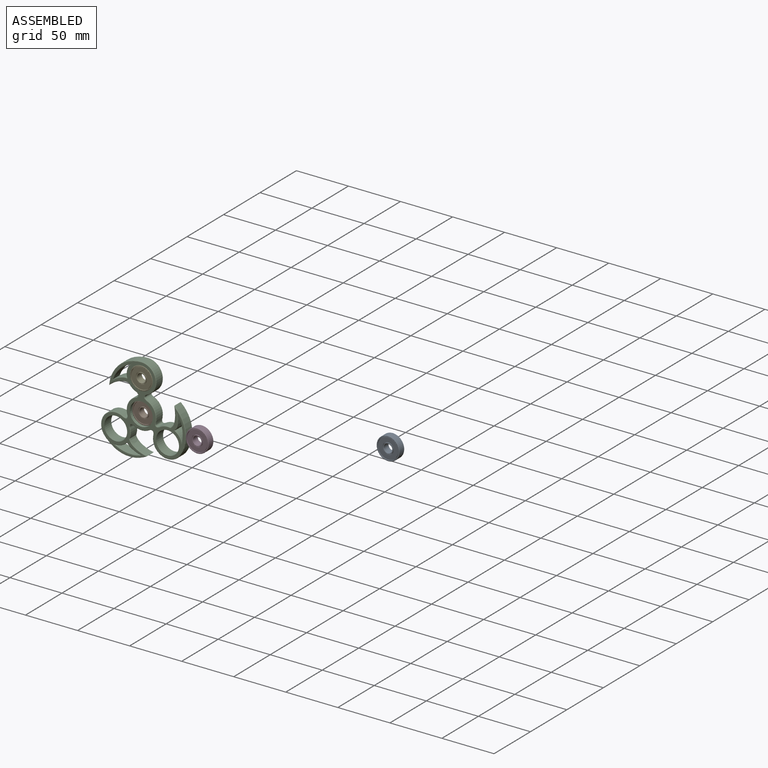
[diagram: assembled view]
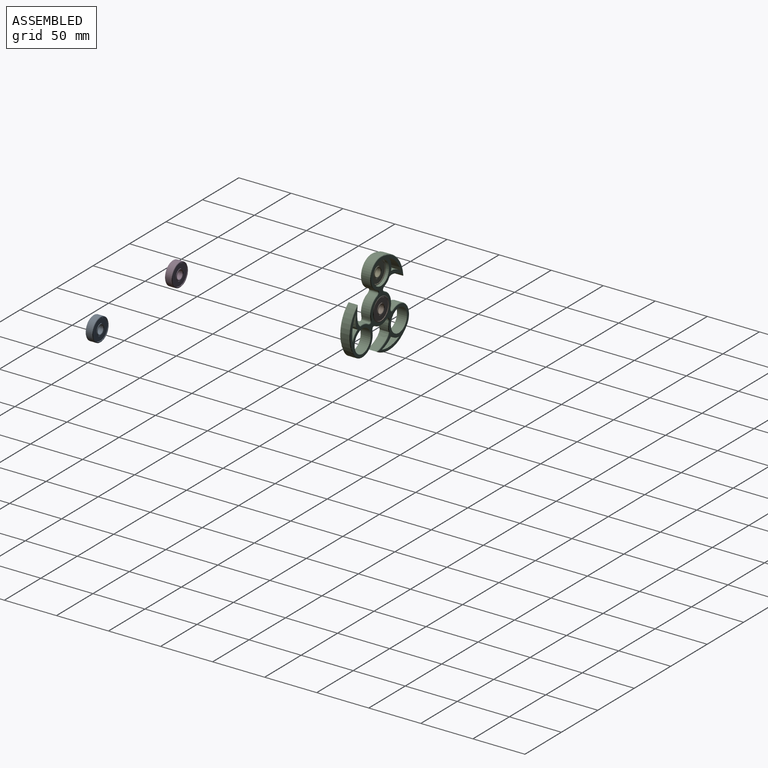
[diagram: assembled view, second angle]
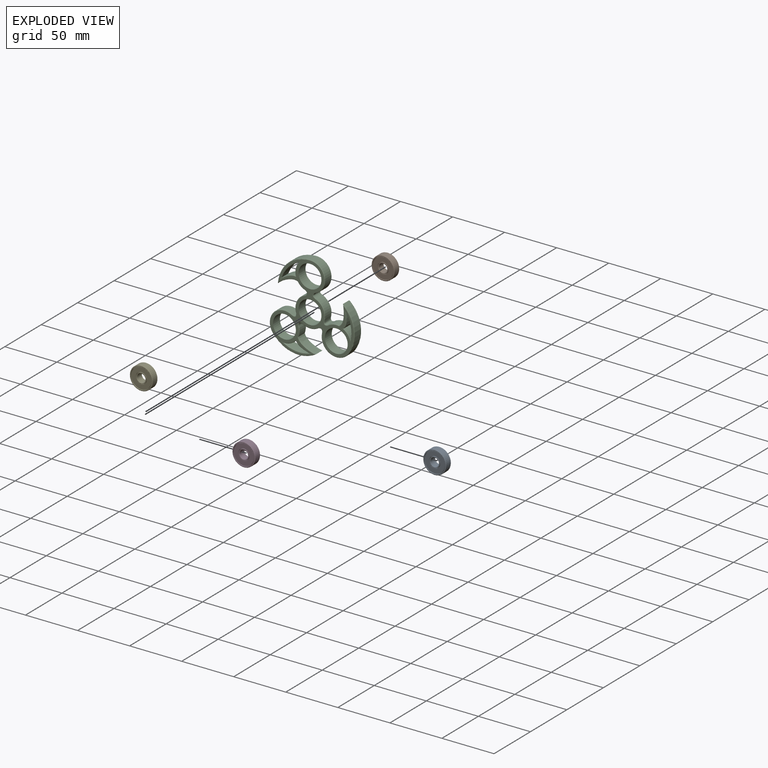
[diagram: exploded view]
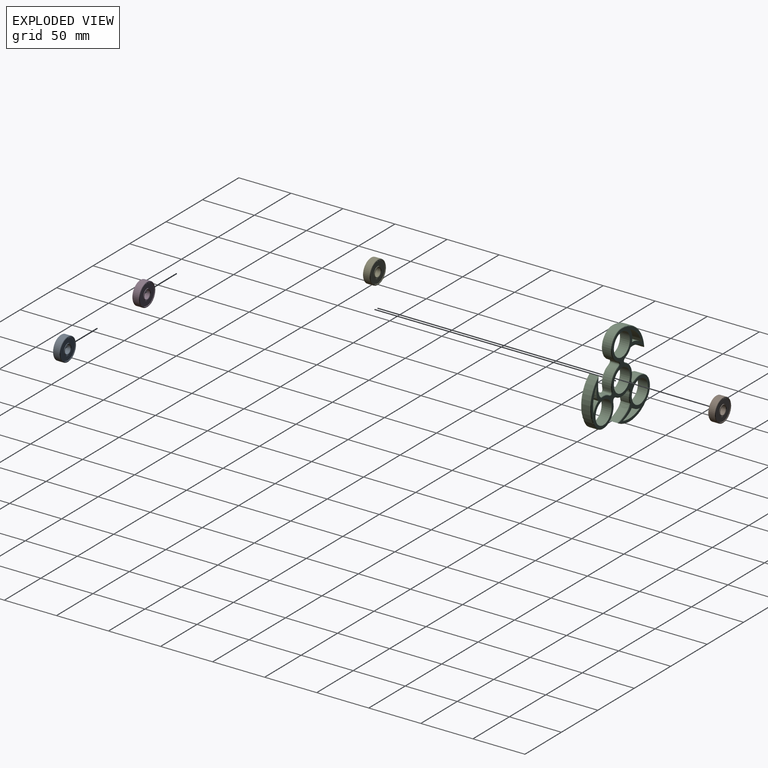
[diagram: exploded view, second angle]
ASSEMBLY  parts=5 mates=2
PART A: 32 faces, bbox 22x7x22 mm
  f0: cylinder r=10mm len=20mm, axis (0,1,0), area 62.8mm2, adj f1,f19
  f1: plane 21.34x21.34mm, normal (0,1,0), area 43.5mm2, adj f0,f21
  f2: cylinder r=11mm len=22mm, axis (0,1,0), area 438.2mm2, adj f20,f21
  f3: plane 21.34x21.34mm, normal (0,-1,0), area 43.5mm2, adj f4,f20
  f4: cylinder r=10mm len=20mm, axis (0,1,0), area 62.8mm2, adj f3,f5
  f5: plane 20x20mm, normal (0,-1,0), area 18.1mm2, adj f4,f6
  f6: cylinder r=9.71mm len=19.42mm, axis (0,1,0), area 44.7mm2, adj f5,f7
  f7: plane 19.42x19.42mm, normal (0,-1,0), area 208.1mm2, adj f6,f8
  f8: cylinder r=5.29mm len=10.58mm, axis (0,1,0), area 24.4mm2, adj f7,f9
  f9: plane 10.58x10.58mm, normal (0,-1,0), area 9.4mm2, adj f8,f10
  f10: cylinder r=5mm len=10mm, axis (0,1,0), area 31.4mm2, adj f9,f11
  f11: plane 10x10mm, normal (0,-1,0), area 19.6mm2, adj f10,f22
  f12: cylinder r=4mm len=8mm, axis (0,1,0), area 159.3mm2, adj f22,f23
  f13: plane 10x10mm, normal (0,1,0), area 19.6mm2, adj f14,f23
  f14: cylinder r=5mm len=10mm, axis (0,1,0), area 31.4mm2, adj f13,f15
  f15: plane 10.58x10.58mm, normal (0,1,0), area 9.4mm2, adj f14,f16
  f16: cylinder r=5.29mm len=10.58mm, axis (0,1,0), area 24.4mm2, adj f15,f17
  f17: plane 19.42x19.42mm, normal (0,1,0), area 208.1mm2, adj f16,f18
  f18: cylinder r=9.71mm len=19.42mm, axis (0,1,0), area 44.7mm2, adj f17,f19
  f19: plane 20x20mm, normal (0,1,0), area 18.1mm2, adj f0,f18
  f20: cone r=11mm half-angle=45deg, axis (0,1,0), area 31.8mm2, adj f2,f3
  f21: cone r=10.67mm half-angle=45deg, axis (0,-1,0), area 31.8mm2, adj f1,f2
  f22: cone r=4.33mm half-angle=45deg, axis (0,-1,0), area 12.2mm2, adj f11,f12
  f23: cone r=4mm half-angle=45deg, axis (0,1,0), area 12.2mm2, adj f12,f13
  f24: cylinder r=8.16mm len=16.32mm, axis (0,1,0), area 48.4mm2, adj f25,f31
  f25: torus R=7.5mm, axis (0,1,0), area 219.3mm2, adj f24,f26
  f26: cylinder r=8.16mm len=16.32mm, axis (0,1,0), area 48.4mm2, adj f25,f27
  f27: plane 16.32x16.32mm, normal (0,-1,0), area 62.1mm2, adj f26,f28
  f28: cylinder r=6.84mm len=13.68mm, axis (0,1,0), area 40.6mm2, adj f27,f29
  f29: torus R=7.5mm, axis (0,1,0), area 153.3mm2, adj f28,f30
  f30: cylinder r=6.84mm len=13.68mm, axis (0,1,0), area 40.6mm2, adj f29,f31
  f31: plane 16.32x16.32mm, normal (0,1,0), area 62.1mm2, adj f24,f30
PART B: same geometry as A
PART C: 87 faces, bbox 85.3x9.5x90.6 mm
  f0: cylinder r=30.84mm len=23.63mm, axis (0,1,0), area 216.9mm2, adj f1,f29,f31,f77
  f1: cylinder r=14.29mm len=11.04mm, axis (0,1,0), area 110.8mm2, adj f0,f29,f31,f79
  f2: cylinder r=30.84mm len=23.07mm, axis (0,1,0), area 214.3mm2, adj f3,f26,f31,f74
  f3: cylinder r=14.29mm len=8.89mm, axis (0,1,0), area 99.4mm2, adj f2,f26,f31,f76
  f4: cylinder r=14.29mm len=27.66mm, axis (0,1,0), area 328.1mm2, adj f5,f27,f39,f60
  f5: cylinder r=30.84mm len=31.09mm, axis (0,1,0), area 384mm2, adj f4,f6,f37,f58
  f6: extruded ~19.01x8.26mm, area 172.9mm2, adj f5,f7,f35,f56
  f7: cylinder r=14.29mm len=8.26mm, axis (0,1,0), area 76.4mm2, adj f6,f8,f33,f54
  f8: extruded ~8.26x4.37mm, area 49.4mm2, adj f7,f9,f32,f53
  f9: cylinder r=14.29mm len=17.94mm, axis (0,1,0), area 181.2mm2, adj f8,f10,f34,f55
  f10: extruded ~8.26x3.92mm, area 50.1mm2, adj f9,f11,f36,f57
  f11: cylinder r=14.29mm len=22.99mm, axis (0,1,0), area 324.4mm2, adj f10,f12,f38,f59
  f12: cylinder r=30.84mm len=41.6mm, axis (0,1,0), area 384mm2, adj f11,f13,f40,f61
  f13: extruded ~17.08x10.46mm, area 172.8mm2, adj f12,f14,f42,f63
  f14: cylinder r=14.29mm len=10.04mm, axis (0,1,0), area 84.7mm2, adj f13,f15,f44,f65
  f15: extruded ~8.26x3.57mm, area 46.5mm2, adj f14,f16,f46,f67
  f16: cylinder r=14.29mm len=15.17mm, axis (0,1,0), area 132mm2, adj f15,f17,f48,f69
  f17: extruded ~8.26x3.72mm, area 50.2mm2, adj f16,f18,f50,f71
  f18: cylinder r=14.29mm len=25.99mm, axis (0,1,0), area 328.1mm2, adj f17,f19,f52,f73
  f19: cylinder r=30.84mm len=41.86mm, axis (0,1,0), area 384mm2, adj f18,f20,f51,f72
  f20: extruded ~19.63x8.26mm, area 173.1mm2, adj f19,f21,f49,f70
  f21: cylinder r=14.29mm len=10.73mm, axis (0,1,0), area 92.9mm2, adj f20,f22,f47,f68
  f22: extruded ~8.26x3.49mm, area 48.5mm2, adj f21,f23,f45,f66
  f23: cylinder r=14.29mm len=17.37mm, axis (0,1,0), area 176.3mm2, adj f22,f27,f43,f64
  f24: cylinder r=30.84mm len=17.36mm, axis (0,1,0), area 218mm2, adj f25,f28,f31,f80
  f25: cylinder r=14.29mm len=12.3mm, axis (0,1,0), area 116mm2, adj f24,f28,f31,f81
  f26: extruded ~14.58x8.89mm, area 136.2mm2, adj f2,f3,f31,f75
  f27: extruded ~8.26x4.37mm, area 49.4mm2, adj f4,f23,f41,f62
  f28: extruded ~13.64x8.89mm, area 132mm2, adj f24,f25,f31,f82
  f29: extruded ~12.59x8.89mm, area 132.9mm2, adj f0,f1,f31,f78
  f30: plane 84.23x80.29mm, normal (0,-1,0), area 1178mm2, adj f53,f54,f55,f56,f57,f58,f59,f60
  f31: plane 84.23x80.29mm, normal (0,1,0), area 1287.4mm2, adj f0,f1,f2,f3,f24,f25,f26,f28
  f32: bspline ~5.77x2.81mm, area 6.5mm2, adj f8,f31,f33,f34
  f33: torus R=13.65mm, axis (0,-1,0), area 9.2mm2, adj f7,f31,f32,f35
  f34: torus R=13.65mm, axis (0,-1,0), area 21.6mm2, adj f9,f31,f32,f36
  f35: bspline ~21.17x8.17mm, area 20.4mm2, adj f6,f31,f33,f37
  f36: bspline ~5.39x4.25mm, area 6.6mm2, adj f10,f31,f34,f38
  f37: torus R=30.2mm, axis (0,-1,0), area 45.2mm2, adj f5,f31,f35,f39
  f38: torus R=13.65mm, axis (0,-1,0), area 38.6mm2, adj f11,f31,f36,f40
  f39: torus R=13.65mm, axis (0,-1,0), area 39mm2, adj f4,f31,f37,f41
  f40: torus R=30.2mm, axis (0,-1,0), area 45.2mm2, adj f12,f31,f38,f42
  f41: bspline ~5.77x2.81mm, area 6.5mm2, adj f27,f31,f39,f43
  f42: bspline ~19.29x12.28mm, area 20.4mm2, adj f13,f31,f40,f44
  f43: torus R=13.65mm, axis (0,-1,0), area 21mm2, adj f23,f31,f41,f45
  f44: torus R=13.65mm, axis (0,-1,0), area 10.2mm2, adj f14,f31,f42,f46
  f45: bspline ~4.56x4.27mm, area 6.4mm2, adj f22,f31,f43,f47
  f46: bspline ~4.64x4.52mm, area 6.1mm2, adj f15,f31,f44,f48
  f47: torus R=13.65mm, axis (0,-1,0), area 11.2mm2, adj f21,f31,f45,f49
  f48: torus R=13.65mm, axis (0,-1,0), area 15.7mm2, adj f16,f31,f46,f50
  f49: bspline ~21.97x6.46mm, area 20.4mm2, adj f20,f31,f47,f51
  f50: bspline ~4.78x4.28mm, area 6.6mm2, adj f17,f31,f48,f52
  f51: torus R=30.2mm, axis (0,-1,0), area 45.2mm2, adj f19,f31,f49,f52
  f52: torus R=13.65mm, axis (0,-1,0), area 39mm2, adj f18,f31,f50,f51
  f53: bspline ~6.02x3.24mm, area 6.5mm2, adj f8,f30,f54,f55
  f54: torus R=13.65mm, axis (0,-1,0), area 9.2mm2, adj f7,f30,f53,f56
  f55: torus R=13.65mm, axis (0,-1,0), area 21.6mm2, adj f9,f30,f53,f57
  f56: bspline ~21.17x8.17mm, area 20.4mm2, adj f6,f30,f54,f58
  f57: bspline ~5.09x3.92mm, area 6.6mm2, adj f10,f30,f55,f59
  f58: torus R=30.2mm, axis (0,-1,0), area 45.2mm2, adj f5,f30,f56,f60
  f59: torus R=13.65mm, axis (0,-1,0), area 38.6mm2, adj f11,f30,f57,f61
  f60: torus R=13.65mm, axis (0,-1,0), area 39mm2, adj f4,f30,f58,f62
  f61: torus R=30.2mm, axis (0,-1,0), area 45.2mm2, adj f12,f30,f59,f63
  f62: bspline ~6.02x3.24mm, area 6.5mm2, adj f27,f30,f60,f64
  f63: bspline ~19.29x12.28mm, area 20.4mm2, adj f13,f30,f61,f65
  f64: torus R=13.65mm, axis (0,-1,0), area 21mm2, adj f23,f30,f62,f66
  f65: torus R=13.65mm, axis (0,-1,0), area 10.2mm2, adj f14,f30,f63,f67
  f66: bspline ~4.55x3.84mm, area 6.4mm2, adj f22,f30,f64,f68
  f67: bspline ~4.72x3.88mm, area 6.1mm2, adj f15,f30,f65,f69
  f68: torus R=13.65mm, axis (0,-1,0), area 11.2mm2, adj f21,f30,f66,f70
  f69: torus R=13.65mm, axis (0,-1,0), area 15.7mm2, adj f16,f30,f67,f71
  f70: bspline ~21.97x6.46mm, area 20.4mm2, adj f20,f30,f68,f72
  f71: bspline ~5.16x3.94mm, area 6.6mm2, adj f17,f30,f69,f73
  f72: torus R=30.2mm, axis (0,-1,0), area 45.2mm2, adj f19,f30,f70,f73
  f73: torus R=13.65mm, axis (0,-1,0), area 39mm2, adj f18,f30,f71,f72
  f74: torus R=31.47mm, axis (0,-1,0), area 27mm2, adj f2,f30,f75,f76
  f75: bspline ~19.09x4.61mm, area 16.9mm2, adj f26,f30,f74,f76
  f76: torus R=13.65mm, axis (0,-1,0), area 12.9mm2, adj f3,f30,f74,f75
  f77: torus R=31.47mm, axis (0,-1,0), area 27.1mm2, adj f0,f30,f78,f79
  f78: bspline ~16.66x10.24mm, area 16.4mm2, adj f29,f30,f77,f79
  f79: torus R=13.65mm, axis (0,-1,0), area 14.2mm2, adj f1,f30,f77,f78
  f80: torus R=31.47mm, axis (0,-1,0), area 27.2mm2, adj f24,f30,f81,f82
  f81: torus R=13.65mm, axis (0,-1,0), area 14.8mm2, adj f25,f30,f80,f82
  f82: bspline ~17.18x7.24mm, area 16.2mm2, adj f28,f30,f80,f81
  f83: cylinder r=11mm len=22mm, axis (0,1,0), area 658.3mm2, adj f30,f31
  f84: cylinder r=11mm len=22mm, axis (0,1,0), area 658.3mm2, adj f30,f31
  f85: cylinder r=11mm len=22mm, axis (0,1,0), area 658.3mm2, adj f30,f31
  f86: cylinder r=11mm len=22mm, axis (0,1,0), area 658.3mm2, adj f30,f31
PART D: same geometry as A
PART E: same geometry as A
PLACE A t=(0.45,-35.63,-14.9)mm
PLACE B rot(axis=(1,0,0),180deg) t=(-283.76,34.85,-86.76)mm
PLACE C t=(-283.76,38.02,-86.76)mm
PLACE D t=(-158.35,-70.64,-37.34)mm
PLACE E t=(-283.76,31.73,-55.64)mm
MATE revolute B.f0 <-> C.f83  axis (0,-1,0) through (-283.76,38.02,-86.76)mm
MATE revolute C.f4 <-> E.f0  axis (0,-1,0) through (-283.76,28.5,-55.64)mm
